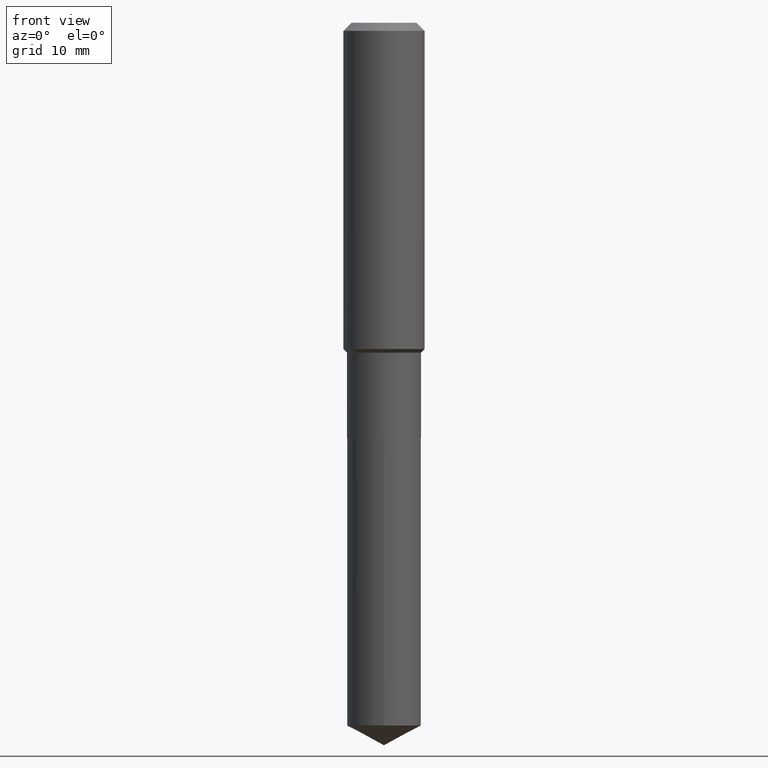
[diagram: clean part render]
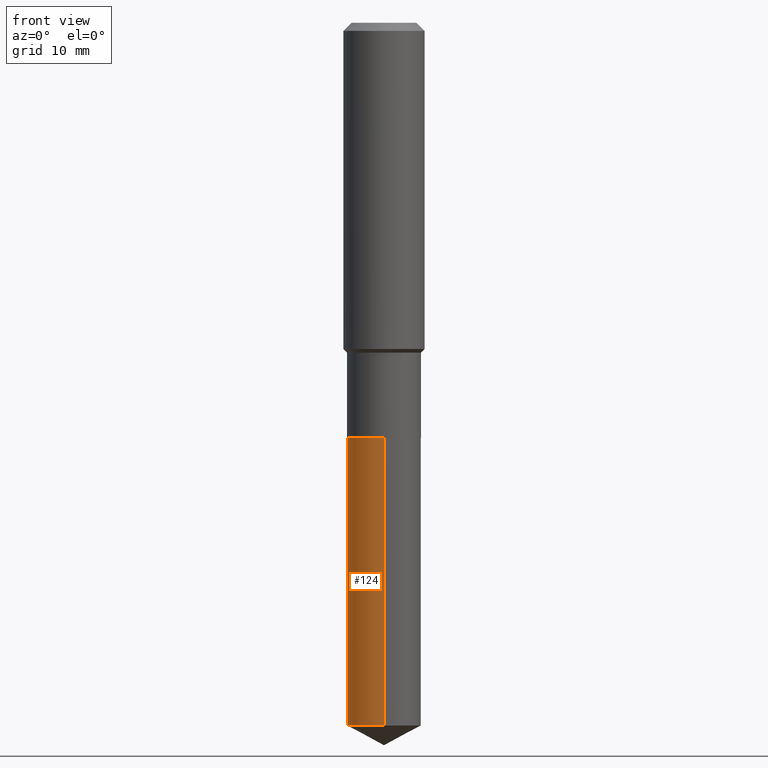
[diagram: same view with one face highlighted and labeled with its STEP entity id]
A machine part, front view. The second image highlights one B-rep face of the part: STEP entity #124.
In plain terms, the highlighted cylindrical surface (partial cylindrical patch) has radius 4.5644 mm, axis along (-0, 0, 1).
Its self-contained STEP definition (entity closure, byte-faithful):
#1 = CARTESIAN_POINT ( 'NONE',  ( 8.335094467611322016E-29, -1.190008731636025747E-14, -3.408351815130433060 ) ) ;
#16 = CARTESIAN_POINT ( 'NONE',  ( -1.254838393180172821E-15, -0.1797000000000070208, -2.012899999999999245 ) ) ;
#21 = EDGE_CURVE ( 'NONE', #310, #300, #255, .T. ) ;
#40 = CARTESIAN_POINT ( 'NONE',  ( -1.254838393180172821E-15, -0.1797000000000070208, -2.012899999999999245 ) ) ;
#42 = DIRECTION ( 'NONE',  ( -6.982962677686265922E-15, -1.000000000000000000, 3.040454083098790380E-15 ) ) ;
#63 = AXIS2_PLACEMENT_3D ( 'NONE', #381, #69, #42 ) ;
#69 = DIRECTION ( 'NONE',  ( -2.445523572107205951E-29, 3.491402910925659802E-15, 1.000000000000000000 ) ) ;
#82 = CARTESIAN_POINT ( 'NONE',  ( -1.254838393180138308E-15, -0.1797000000000118503, -3.408351815130432616 ) ) ;
#121 = DIRECTION ( 'NONE',  ( -2.445523572107205951E-29, 3.491402910925659802E-15, 1.000000000000000000 ) ) ;
#123 = VERTEX_POINT ( 'NONE', #144 ) ;
#124 = ADVANCED_FACE ( 'NONE', ( #458 ), #233, .T. ) ;
#139 = EDGE_LOOP ( 'NONE', ( #440, #405, #316, #389 ) ) ;
#144 = CARTESIAN_POINT ( 'NONE',  ( 1.276845296160983249E-15, 0.1796999999999880915, -3.408351815130433504 ) ) ;
#161 = EDGE_CURVE ( 'NONE', #123, #310, #329, .T. ) ;
#182 = CARTESIAN_POINT ( 'NONE',  ( 1.276845296160983249E-15, 0.1796999999999929765, -2.012900000000000134 ) ) ;
#203 = VECTOR ( 'NONE', #472, 39.37007874015748143 ) ;
#207 = LINE ( 'NONE', #16, #203 ) ;
#233 = CYLINDRICAL_SURFACE ( 'NONE', #63, 0.1796999999999999986 ) ;
#241 = AXIS2_PLACEMENT_3D ( 'NONE', #1, #345, #462 ) ;
#245 = AXIS2_PLACEMENT_3D ( 'NONE', #460, #121, #309 ) ;
#255 = CIRCLE ( 'NONE', #245, 0.1796999999999999986 ) ;
#256 = CIRCLE ( 'NONE', #241, 0.1796999999999999986 ) ;
#259 = VERTEX_POINT ( 'NONE', #82 ) ;
#262 = CARTESIAN_POINT ( 'NONE',  ( 1.276845296160949131E-15, 0.1796999999999929765, -2.012900000000000134 ) ) ;
#300 = VERTEX_POINT ( 'NONE', #40 ) ;
#302 = EDGE_CURVE ( 'NONE', #123, #259, #256, .T. ) ;
#309 = DIRECTION ( 'NONE',  ( -6.982962677686265922E-15, -1.000000000000000000, 3.040454083098790380E-15 ) ) ;
#310 = VERTEX_POINT ( 'NONE', #182 ) ;
#316 = ORIENTED_EDGE ( 'NONE', *, *, #471, .T. ) ;
#321 = VECTOR ( 'NONE', #443, 39.37007874015748143 ) ;
#329 = LINE ( 'NONE', #262, #321 ) ;
#345 = DIRECTION ( 'NONE',  ( -2.445523572107205951E-29, 3.491402910925659802E-15, 1.000000000000000000 ) ) ;
#381 = CARTESIAN_POINT ( 'NONE',  ( 4.922484159970061082E-29, -7.028002786957366746E-15, -2.012899999999999689 ) ) ;
#389 = ORIENTED_EDGE ( 'NONE', *, *, #21, .F. ) ;
#405 = ORIENTED_EDGE ( 'NONE', *, *, #302, .T. ) ;
#440 = ORIENTED_EDGE ( 'NONE', *, *, #161, .F. ) ;
#443 = DIRECTION ( 'NONE',  ( -2.445523572107205951E-29, 3.491402910925659802E-15, 1.000000000000000000 ) ) ;
#458 = FACE_OUTER_BOUND ( 'NONE', #139, .T. ) ;
#460 = CARTESIAN_POINT ( 'NONE',  ( 4.922484159970061082E-29, -7.028002786957366746E-15, -2.012899999999999689 ) ) ;
#462 = DIRECTION ( 'NONE',  ( -6.982962677686265922E-15, -1.000000000000000000, 3.040454083098790380E-15 ) ) ;
#471 = EDGE_CURVE ( 'NONE', #259, #300, #207, .T. ) ;
#472 = DIRECTION ( 'NONE',  ( -2.445523572107205951E-29, 3.491402910925659802E-15, 1.000000000000000000 ) ) ;